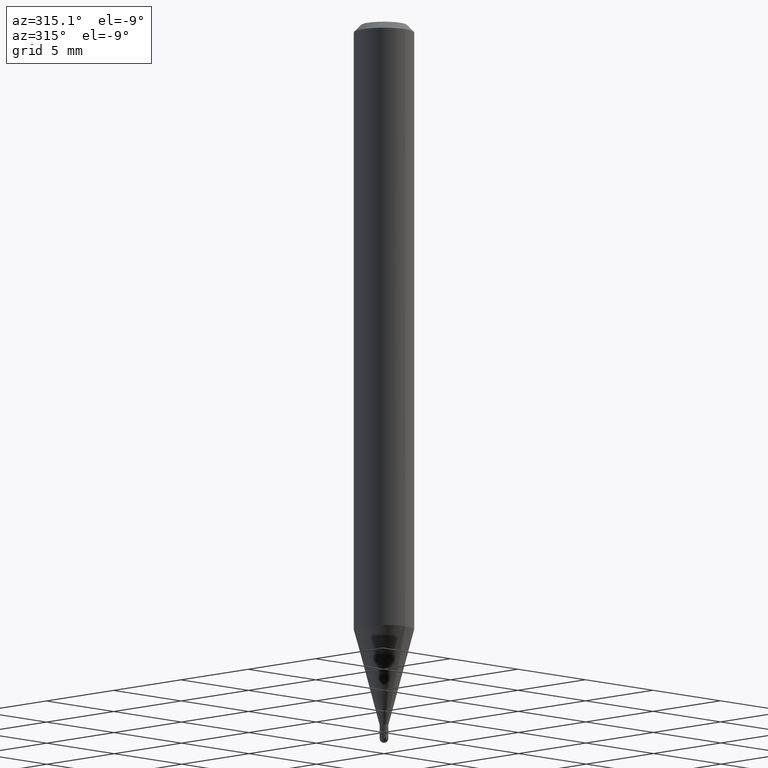
[diagram: clean part render]
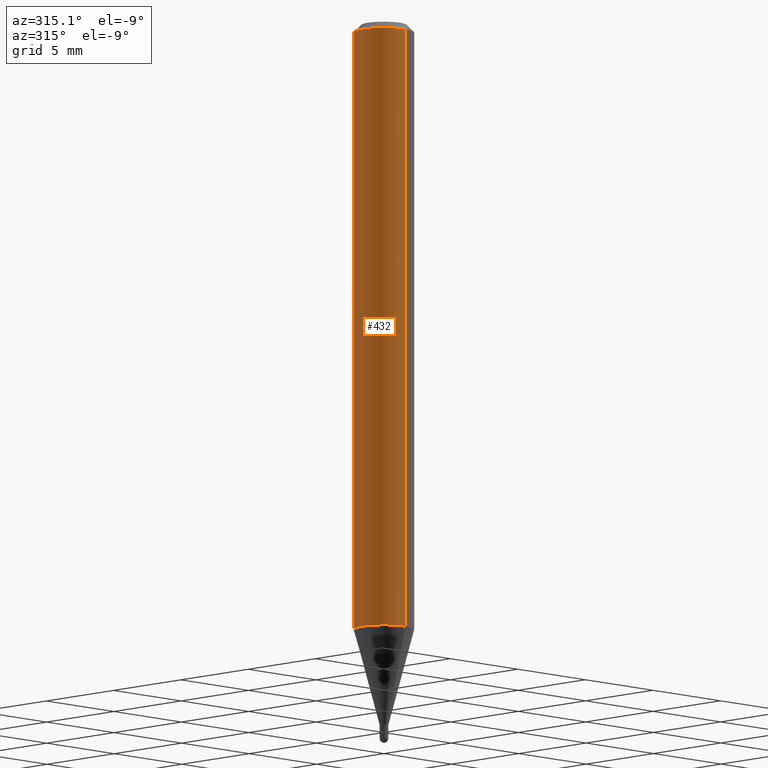
[diagram: same view with one face highlighted and labeled with its STEP entity id]
A machine part, auxiliary view. The second image highlights one B-rep face of the part: STEP entity #432.
In plain terms, the highlighted cylindrical surface (edge-blend (fillet) strip) has radius 1.5875 mm, axis along (-0, 0, 1).
Its self-contained STEP definition (entity closure, byte-faithful):
#13 = CARTESIAN_POINT ( 'NONE',  ( 4.440892098500625669E-16, 0.06250000000000000000, -2.182183063764577639E-16 ) ) ;
#40 = EDGE_LOOP ( 'NONE', ( #317, #190, #79, #465 ) ) ;
#51 = AXIS2_PLACEMENT_3D ( 'NONE', #349, #147, #503 ) ;
#79 = ORIENTED_EDGE ( 'NONE', *, *, #176, .T. ) ;
#94 = AXIS2_PLACEMENT_3D ( 'NONE', #464, #306, #502 ) ;
#114 = CIRCLE ( 'NONE', #51, 0.06250000000000000000 ) ;
#116 = VERTEX_POINT ( 'NONE', #143 ) ;
#143 = CARTESIAN_POINT ( 'NONE',  ( -4.364351673553608052E-16, -0.06250000000000441314, -1.263335281795065601 ) ) ;
#147 = DIRECTION ( 'NONE',  ( -2.445460731659574358E-29, 3.491492902023324222E-15, 1.000000000000000000 ) ) ;
#157 = DIRECTION ( 'NONE',  ( -2.445460731659574358E-29, 3.491492902023324222E-15, 1.000000000000000000 ) ) ;
#176 = EDGE_CURVE ( 'NONE', #116, #363, #217, .T. ) ;
#186 = AXIS2_PLACEMENT_3D ( 'NONE', #362, #242, #445 ) ;
#190 = ORIENTED_EDGE ( 'NONE', *, *, #316, .T. ) ;
#212 = VECTOR ( 'NONE', #455, 39.37007874015748143 ) ;
#217 = LINE ( 'NONE', #374, #212 ) ;
#231 = CARTESIAN_POINT ( 'NONE',  ( -4.364351673553912750E-16, -0.06250000000000005551, -0.01499999999999979128 ) ) ;
#232 = VERTEX_POINT ( 'NONE', #408 ) ;
#236 = LINE ( 'NONE', #13, #244 ) ;
#242 = DIRECTION ( 'NONE',  ( -2.445460731659574358E-29, 3.491492902023324222E-15, 1.000000000000000000 ) ) ;
#244 = VECTOR ( 'NONE', #157, 39.37007874015748143 ) ;
#289 = FACE_OUTER_BOUND ( 'NONE', #40, .T. ) ;
#306 = DIRECTION ( 'NONE',  ( -2.445460731659574358E-29, 3.491492902023324222E-15, 1.000000000000000000 ) ) ;
#308 = EDGE_CURVE ( 'NONE', #232, #363, #390, .T. ) ;
#316 = EDGE_CURVE ( 'NONE', #328, #116, #114, .T. ) ;
#317 = ORIENTED_EDGE ( 'NONE', *, *, #477, .F. ) ;
#328 = VERTEX_POINT ( 'NONE', #507 ) ;
#349 = CARTESIAN_POINT ( 'NONE',  ( 3.089436822549915707E-29, -4.410926169263107642E-15, -1.263335281795065823 ) ) ;
#362 = CARTESIAN_POINT ( 'NONE',  ( 0.000000000000000000, 0.000000000000000000, 0.000000000000000000 ) ) ;
#363 = VERTEX_POINT ( 'NONE', #231 ) ;
#374 = CARTESIAN_POINT ( 'NONE',  ( -4.364351673553916201E-16, -0.06250000000000000000, 2.182183063764577639E-16 ) ) ;
#390 = CIRCLE ( 'NONE', #94, 0.06250000000000000000 ) ;
#408 = CARTESIAN_POINT ( 'NONE',  ( 4.440892098500935790E-16, 0.06249999999999993755, -0.01500000000000022669 ) ) ;
#432 = ADVANCED_FACE ( 'NONE', ( #289 ), #484, .T. ) ;
#445 = DIRECTION ( 'NONE',  ( -6.982962677686265922E-15, -1.000000000000000000, 3.491492902023324222E-15 ) ) ;
#455 = DIRECTION ( 'NONE',  ( -2.445460731659574358E-29, 3.491492902023324222E-15, 1.000000000000000000 ) ) ;
#464 = CARTESIAN_POINT ( 'NONE',  ( 3.668191097489363552E-31, -5.237239353034989144E-17, -0.01500000000000000812 ) ) ;
#465 = ORIENTED_EDGE ( 'NONE', *, *, #308, .F. ) ;
#477 = EDGE_CURVE ( 'NONE', #328, #232, #236, .T. ) ;
#484 = CYLINDRICAL_SURFACE ( 'NONE', #186, 0.06250000000000000000 ) ;
#502 = DIRECTION ( 'NONE',  ( -6.982962677686265922E-15, -1.000000000000000000, 3.483106191921935554E-15 ) ) ;
#503 = DIRECTION ( 'NONE',  ( -6.982962677686265922E-15, -1.000000000000000000, 4.370956789862821150E-15 ) ) ;
#507 = CARTESIAN_POINT ( 'NONE',  ( 4.440892098500932831E-16, 0.06249999999999556605, -1.263335281795066045 ) ) ;